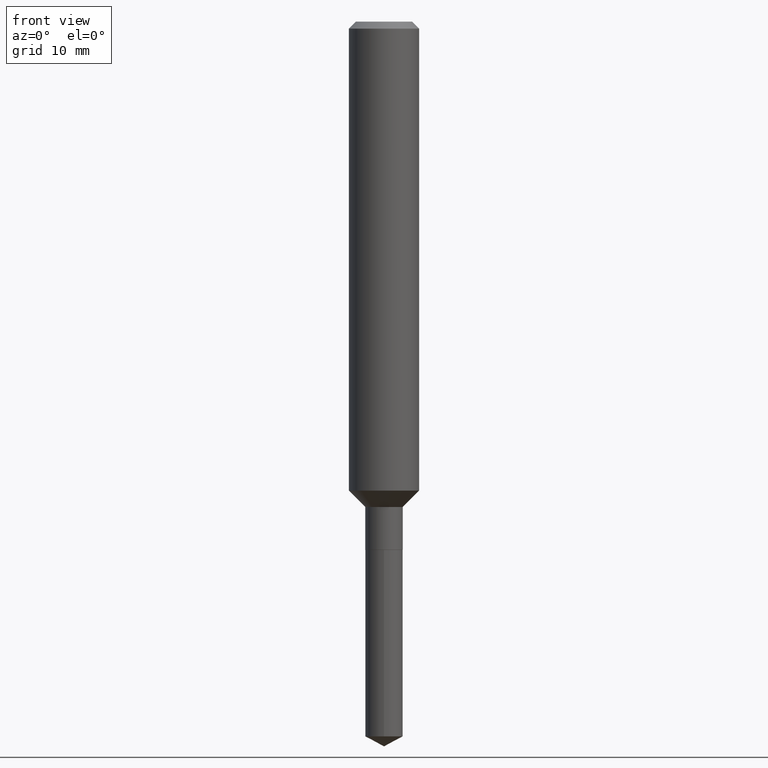
[diagram: clean part render]
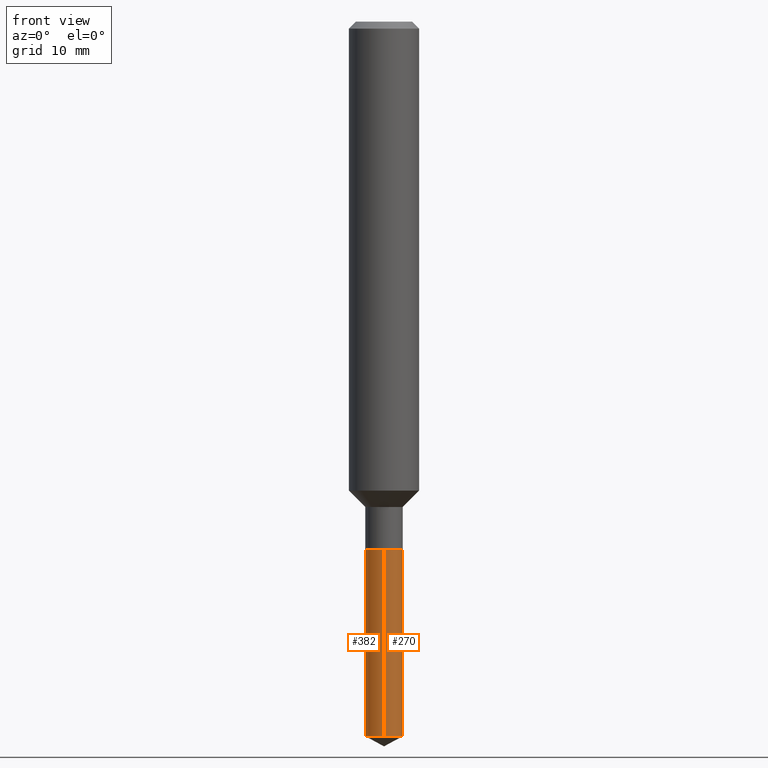
[diagram: same view with one multi-face feature highlighted, each face labeled with its STEP entity id]
A machine part, front view. The highlighted faces form ONE feature: a constant-radius fillet chain: 2 tangent blend faces with common blend radius 1.6002 mm. The faces share edges in the B-rep.
Their STEP definitions:
[1] entity #270 (Cylinder):
#11 = EDGE_CURVE ( 'NONE', #268, #54, #172, .T. ) ;
#20 = CARTESIAN_POINT ( 'NONE',  ( -4.399266486941762515E-16, -0.06300000000000846589, -2.407402305805326215 ) ) ;
#50 = CARTESIAN_POINT ( 'NONE',  ( -4.399266486941912892E-16, -0.06300000000000621769, -1.779499999999999416 ) ) ;
#54 = VERTEX_POINT ( 'NONE', #122 ) ;
#76 = EDGE_LOOP ( 'NONE', ( #81, #409, #209, #361 ) ) ;
#81 = ORIENTED_EDGE ( 'NONE', *, *, #211, .T. ) ;
#83 = DIRECTION ( 'NONE',  ( -2.410210736242674769E-29, 3.541972901765466876E-15, 1.000000000000000000 ) ) ;
#92 = AXIS2_PLACEMENT_3D ( 'NONE', #203, #83, #355 ) ;
#122 = CARTESIAN_POINT ( 'NONE',  ( 4.476419235289220876E-16, 0.06299999999999378320, -1.779499999999999860 ) ) ;
#123 = CYLINDRICAL_SURFACE ( 'NONE', #92, 0.06300000000000001432 ) ;
#136 = VECTOR ( 'NONE', #468, 39.37007874015748143 ) ;
#147 = VECTOR ( 'NONE', #344, 39.37007874015748143 ) ;
#171 = EDGE_CURVE ( 'NONE', #426, #268, #197, .T. ) ;
#172 = CIRCLE ( 'NONE', #323, 0.06300000000000000044 ) ;
#197 = LINE ( 'NONE', #466, #147 ) ;
#203 = CARTESIAN_POINT ( 'NONE',  ( 4.351711740606449758E-29, -6.213091042471375748E-15, -1.779499999999999638 ) ) ;
#206 = VERTEX_POINT ( 'NONE', #431 ) ;
#209 = ORIENTED_EDGE ( 'NONE', *, *, #11, .F. ) ;
#211 = EDGE_CURVE ( 'NONE', #426, #206, #385, .T. ) ;
#235 = DIRECTION ( 'NONE',  ( -2.410210736242674769E-29, 3.541972901765466876E-15, 1.000000000000000000 ) ) ;
#238 = DIRECTION ( 'NONE',  ( -2.410210736242674769E-29, 3.541972901765466876E-15, 1.000000000000000000 ) ) ;
#239 = DIRECTION ( 'NONE',  ( -6.982962677686266711E-15, -1.000000000000000000, 4.336266656609940039E-15 ) ) ;
#268 = VERTEX_POINT ( 'NONE', #50 ) ;
#270 = ADVANCED_FACE ( 'NONE', ( #308 ), #123, .T. ) ;
#272 = CARTESIAN_POINT ( 'NONE',  ( 5.865088619369979640E-29, -8.437103994589897883E-15, -2.407402305805326659 ) ) ;
#304 = CARTESIAN_POINT ( 'NONE',  ( 4.351711740606449758E-29, -6.213091042471375748E-15, -1.779499999999999638 ) ) ;
#308 = FACE_OUTER_BOUND ( 'NONE', #76, .T. ) ;
#323 = AXIS2_PLACEMENT_3D ( 'NONE', #304, #238, #353 ) ;
#344 = DIRECTION ( 'NONE',  ( -2.410210736242675049E-29, 3.541972901765466481E-15, 1.000000000000000000 ) ) ;
#353 = DIRECTION ( 'NONE',  ( -6.982962677686265922E-15, -1.000000000000000000, 4.336266656609941617E-15 ) ) ;
#355 = DIRECTION ( 'NONE',  ( -6.982962677686266711E-15, -1.000000000000000000, 4.336266656609940828E-15 ) ) ;
#361 = ORIENTED_EDGE ( 'NONE', *, *, #171, .F. ) ;
#366 = EDGE_CURVE ( 'NONE', #206, #54, #438, .T. ) ;
#385 = CIRCLE ( 'NONE', #483, 0.06300000000000002820 ) ;
#409 = ORIENTED_EDGE ( 'NONE', *, *, #366, .T. ) ;
#426 = VERTEX_POINT ( 'NONE', #20 ) ;
#431 = CARTESIAN_POINT ( 'NONE',  ( 4.476419235289219890E-16, 0.06299999999999160438, -2.407402305805327103 ) ) ;
#438 = LINE ( 'NONE', #441, #136 ) ;
#441 = CARTESIAN_POINT ( 'NONE',  ( 4.476419235289067048E-16, 0.06299999999999379707, -1.779499999999999860 ) ) ;
#466 = CARTESIAN_POINT ( 'NONE',  ( -4.399266486941913878E-16, -0.06300000000000623157, -1.779499999999999416 ) ) ;
#468 = DIRECTION ( 'NONE',  ( -2.410210736242675049E-29, 3.541972901765466481E-15, 1.000000000000000000 ) ) ;
#483 = AXIS2_PLACEMENT_3D ( 'NONE', #272, #235, #239 ) ;
[2] entity #382 (Cylinder):
#20 = CARTESIAN_POINT ( 'NONE',  ( -4.399266486941762515E-16, -0.06300000000000846589, -2.407402305805326215 ) ) ;
#22 = DIRECTION ( 'NONE',  ( -6.982962677686266711E-15, -1.000000000000000000, 4.336266656609940039E-15 ) ) ;
#24 = DIRECTION ( 'NONE',  ( -2.410210736242674769E-29, 3.541972901765466876E-15, 1.000000000000000000 ) ) ;
#50 = CARTESIAN_POINT ( 'NONE',  ( -4.399266486941912892E-16, -0.06300000000000621769, -1.779499999999999416 ) ) ;
#54 = VERTEX_POINT ( 'NONE', #122 ) ;
#69 = EDGE_CURVE ( 'NONE', #54, #268, #188, .T. ) ;
#89 = EDGE_CURVE ( 'NONE', #206, #426, #109, .T. ) ;
#97 = FACE_OUTER_BOUND ( 'NONE', #419, .T. ) ;
#109 = CIRCLE ( 'NONE', #383, 0.06300000000000002820 ) ;
#114 = DIRECTION ( 'NONE',  ( -6.982962677686265922E-15, -1.000000000000000000, 4.336266656609941617E-15 ) ) ;
#122 = CARTESIAN_POINT ( 'NONE',  ( 4.476419235289220876E-16, 0.06299999999999378320, -1.779499999999999860 ) ) ;
#131 = AXIS2_PLACEMENT_3D ( 'NONE', #487, #415, #114 ) ;
#136 = VECTOR ( 'NONE', #468, 39.37007874015748143 ) ;
#147 = VECTOR ( 'NONE', #344, 39.37007874015748143 ) ;
#171 = EDGE_CURVE ( 'NONE', #426, #268, #197, .T. ) ;
#186 = DIRECTION ( 'NONE',  ( -2.410210736242674769E-29, 3.541972901765466876E-15, 1.000000000000000000 ) ) ;
#188 = CIRCLE ( 'NONE', #131, 0.06300000000000000044 ) ;
#197 = LINE ( 'NONE', #466, #147 ) ;
#206 = VERTEX_POINT ( 'NONE', #431 ) ;
#221 = CARTESIAN_POINT ( 'NONE',  ( 5.865088619369979640E-29, -8.437103994589897883E-15, -2.407402305805326659 ) ) ;
#227 = ORIENTED_EDGE ( 'NONE', *, *, #366, .F. ) ;
#245 = CYLINDRICAL_SURFACE ( 'NONE', #331, 0.06300000000000001432 ) ;
#268 = VERTEX_POINT ( 'NONE', #50 ) ;
#283 = DIRECTION ( 'NONE',  ( -6.982962677686266711E-15, -1.000000000000000000, 4.336266656609940828E-15 ) ) ;
#313 = ORIENTED_EDGE ( 'NONE', *, *, #69, .F. ) ;
#314 = CARTESIAN_POINT ( 'NONE',  ( 4.351711740606449758E-29, -6.213091042471375748E-15, -1.779499999999999638 ) ) ;
#331 = AXIS2_PLACEMENT_3D ( 'NONE', #314, #24, #283 ) ;
#344 = DIRECTION ( 'NONE',  ( -2.410210736242675049E-29, 3.541972901765466481E-15, 1.000000000000000000 ) ) ;
#363 = ORIENTED_EDGE ( 'NONE', *, *, #171, .T. ) ;
#366 = EDGE_CURVE ( 'NONE', #206, #54, #438, .T. ) ;
#382 = ADVANCED_FACE ( 'NONE', ( #97 ), #245, .T. ) ;
#383 = AXIS2_PLACEMENT_3D ( 'NONE', #221, #186, #22 ) ;
#415 = DIRECTION ( 'NONE',  ( -2.410210736242674769E-29, 3.541972901765466876E-15, 1.000000000000000000 ) ) ;
#417 = ORIENTED_EDGE ( 'NONE', *, *, #89, .T. ) ;
#419 = EDGE_LOOP ( 'NONE', ( #227, #417, #363, #313 ) ) ;
#426 = VERTEX_POINT ( 'NONE', #20 ) ;
#431 = CARTESIAN_POINT ( 'NONE',  ( 4.476419235289219890E-16, 0.06299999999999160438, -2.407402305805327103 ) ) ;
#438 = LINE ( 'NONE', #441, #136 ) ;
#441 = CARTESIAN_POINT ( 'NONE',  ( 4.476419235289067048E-16, 0.06299999999999379707, -1.779499999999999860 ) ) ;
#466 = CARTESIAN_POINT ( 'NONE',  ( -4.399266486941913878E-16, -0.06300000000000623157, -1.779499999999999416 ) ) ;
#468 = DIRECTION ( 'NONE',  ( -2.410210736242675049E-29, 3.541972901765466481E-15, 1.000000000000000000 ) ) ;
#487 = CARTESIAN_POINT ( 'NONE',  ( 4.351711740606449758E-29, -6.213091042471375748E-15, -1.779499999999999638 ) ) ;